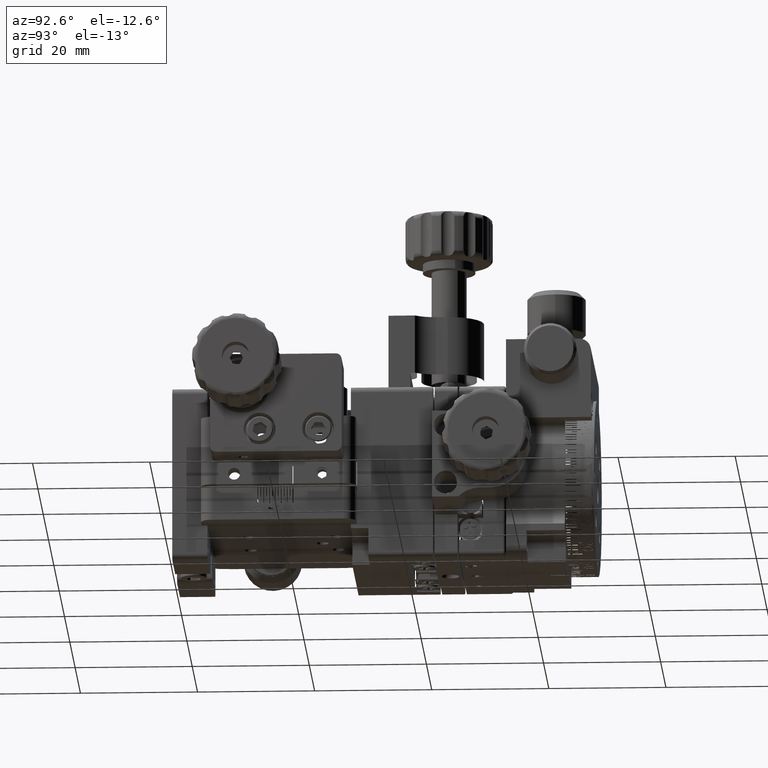
[diagram: clean part render]
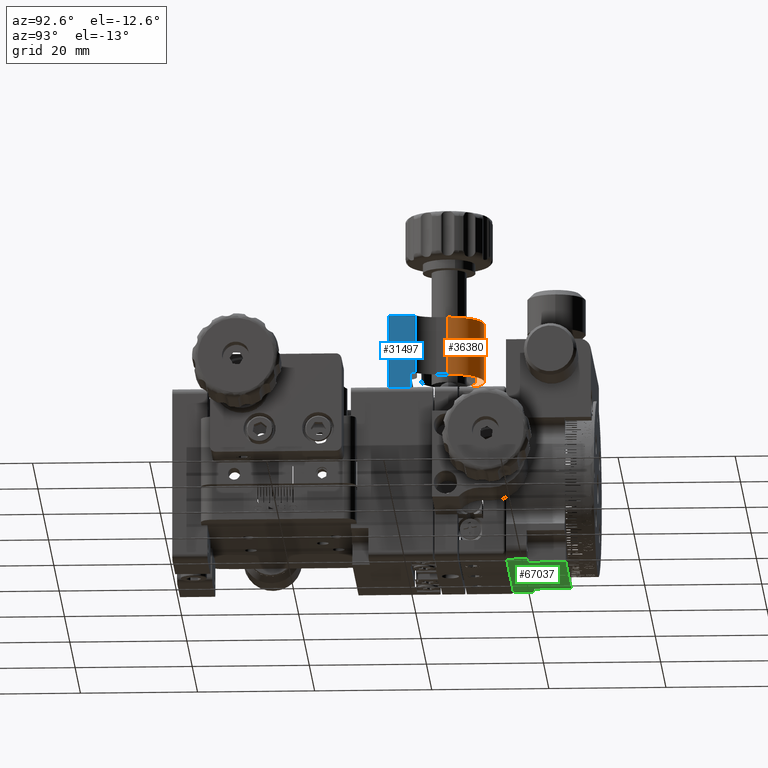
[diagram: same view with three faces highlighted in distinct colors, each labeled with its STEP entity id]
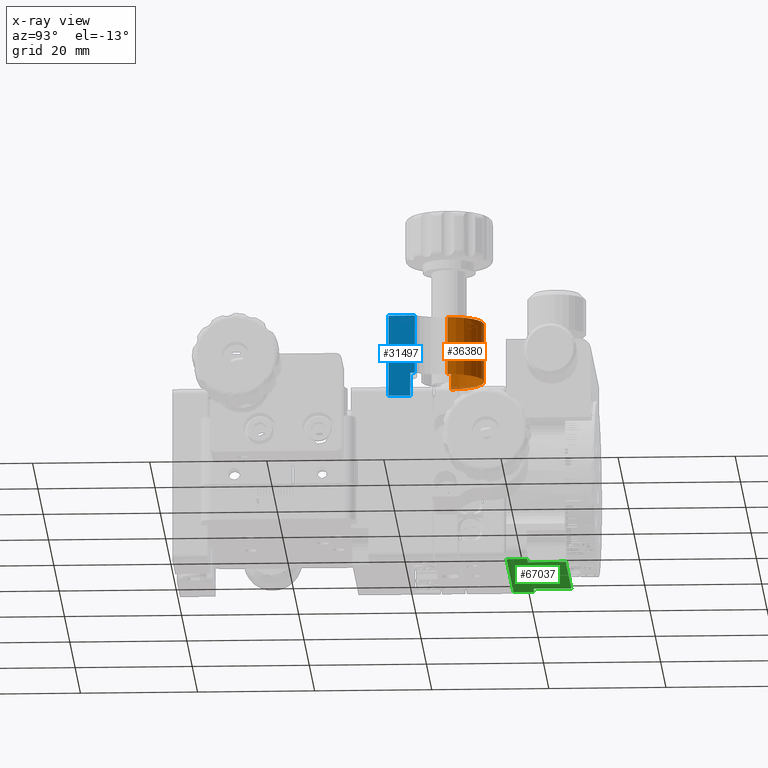
[diagram: x-ray of the same camera — body ghosted, the three highlighted faces saturated]
A machine part, auxiliary view with three faces highlighted in distinct colors.
The next image is the same camera in x-ray (body ghosted, the three faces saturated) — at least one of them is partly hidden behind the body in this view.
Their STEP definitions:

[orange] entity #36380 — the highlighted cylindrical surface (edge-blend (fillet) strip) has radius 6 mm, axis along (-0, 0, 1).
#992 = FACE_OUTER_BOUND ( 'NONE', #5180, .T. ) ;
#5035 = CIRCLE ( 'NONE', #50520, 5.999999999999997335 ) ;
#5180 = EDGE_LOOP ( 'NONE', ( #20484, #75654, #8219, #76421 ) ) ;
#6083 = CARTESIAN_POINT ( 'NONE',  ( 3.401153400965043960E-13, 46.60212255370681333, 18.99999999999999645 ) ) ;
#8219 = ORIENTED_EDGE ( 'NONE', *, *, #35968, .T. ) ;
#12453 = CARTESIAN_POINT ( 'NONE',  ( 6.000000000000334843, 46.60212255370681333, 28.99999999999999289 ) ) ;
#13202 = DIRECTION ( 'NONE',  ( -2.775557561562891967E-17, 1.387778780781445984E-17, 1.000000000000000000 ) ) ;
#16069 = VERTEX_POINT ( 'NONE', #20510 ) ;
#20484 = ORIENTED_EDGE ( 'NONE', *, *, #23173, .F. ) ;
#20510 = CARTESIAN_POINT ( 'NONE',  ( -5.999999999999659828, 46.60212255370681333, 28.99999999999999289 ) ) ;
#23173 = EDGE_CURVE ( 'NONE', #62959, #30113, #47520, .T. ) ;
#23882 = DIRECTION ( 'NONE',  ( 2.775557561562891967E-17, -1.387778780781445984E-17, -1.000000000000000000 ) ) ;
#26219 = CARTESIAN_POINT ( 'NONE',  ( 3.402263623989669117E-13, 46.60212255370681333, 14.99999999999999822 ) ) ;
#26871 = CARTESIAN_POINT ( 'NONE',  ( 6.000000000000337508, 46.60212255370681333, 18.99999999999999645 ) ) ;
#28410 = DIRECTION ( 'NONE',  ( -2.775557561562891967E-17, 1.387778780781445984E-17, 1.000000000000000000 ) ) ;
#30074 = VERTEX_POINT ( 'NONE', #73850 ) ;
#30113 = VERTEX_POINT ( 'NONE', #12453 ) ;
#31329 = DIRECTION ( 'NONE',  ( -2.775557561562891967E-17, 1.387778780781445984E-17, 1.000000000000000000 ) ) ;
#34928 = CARTESIAN_POINT ( 'NONE',  ( -5.999999999999659828, 46.60212255370681333, 14.99999999999999822 ) ) ;
#35968 = EDGE_CURVE ( 'NONE', #30074, #16069, #78396, .T. ) ;
#36380 = ADVANCED_FACE ( 'NONE', ( #992 ), #74201, .T. ) ;
#43115 = DIRECTION ( 'NONE',  ( 1.000000000000000000, 0.000000000000000000, 0.000000000000000000 ) ) ;
#44134 = DIRECTION ( 'NONE',  ( 1.000000000000000000, 0.000000000000000000, 0.000000000000000000 ) ) ;
#47520 = LINE ( 'NONE', #54430, #74382 ) ;
#50520 = AXIS2_PLACEMENT_3D ( 'NONE', #53976, #23882, #78766 ) ;
#53976 = CARTESIAN_POINT ( 'NONE',  ( 3.398377843403481069E-13, 46.60212255370681333, 28.99999999999999289 ) ) ;
#54430 = CARTESIAN_POINT ( 'NONE',  ( 6.000000000000334843, 46.60212255370681333, 14.99999999999999822 ) ) ;
#54529 = AXIS2_PLACEMENT_3D ( 'NONE', #6083, #31329, #43115 ) ;
#56724 = VECTOR ( 'NONE', #58905, 1000.000000000000000 ) ;
#58905 = DIRECTION ( 'NONE',  ( -2.775557561562891967E-17, 1.387778780781445984E-17, 1.000000000000000000 ) ) ;
#62959 = VERTEX_POINT ( 'NONE', #26871 ) ;
#73850 = CARTESIAN_POINT ( 'NONE',  ( -5.999999999999659828, 46.60212255370681333, 18.99999999999999645 ) ) ;
#74201 = CYLINDRICAL_SURFACE ( 'NONE', #80128, 5.999999999999997335 ) ;
#74382 = VECTOR ( 'NONE', #28410, 1000.000000000000000 ) ;
#75654 = ORIENTED_EDGE ( 'NONE', *, *, #80364, .T. ) ;
#76421 = ORIENTED_EDGE ( 'NONE', *, *, #79702, .T. ) ;
#77819 = CIRCLE ( 'NONE', #54529, 5.999999999999997335 ) ;
#78396 = LINE ( 'NONE', #34928, #56724 ) ;
#78766 = DIRECTION ( 'NONE',  ( -1.000000000000000000, 0.000000000000000000, 0.000000000000000000 ) ) ;
#79702 = EDGE_CURVE ( 'NONE', #16069, #30113, #5035, .T. ) ;
#80128 = AXIS2_PLACEMENT_3D ( 'NONE', #26219, #13202, #44134 ) ;
#80364 = EDGE_CURVE ( 'NONE', #62959, #30074, #77819, .T. ) ;

[blue] entity #31497 — the highlighted planar face has unit normal (-1, 0, -0).
#972 = VECTOR ( 'NONE', #50044, 1000.000000000000000 ) ;
#1420 = ORIENTED_EDGE ( 'NONE', *, *, #55312, .T. ) ;
#1759 = EDGE_LOOP ( 'NONE', ( #32911, #52591, #19569, #1420, #39691, #76845 ) ) ;
#6499 = EDGE_CURVE ( 'NONE', #15344, #36786, #78433, .T. ) ;
#8205 = DIRECTION ( 'NONE',  ( -1.274669351721256661E-16, -1.000000000000000000, 1.722399482391948625E-18 ) ) ;
#11348 = CARTESIAN_POINT ( 'NONE',  ( 7.500000000000329514, 36.60212255370680623, 28.99999999999999289 ) ) ;
#13298 = VECTOR ( 'NONE', #17449, 1000.000000000000000 ) ;
#13784 = CARTESIAN_POINT ( 'NONE',  ( 7.500000000000330402, 40.30212255370680197, 18.99999999999999645 ) ) ;
#15344 = VERTEX_POINT ( 'NONE', #27798 ) ;
#16549 = CARTESIAN_POINT ( 'NONE',  ( 7.500000000000329514, 36.60212255370680623, 14.99999999999999822 ) ) ;
#16670 = VERTEX_POINT ( 'NONE', #41942 ) ;
#17449 = DIRECTION ( 'NONE',  ( -1.274669351721256661E-16, -1.000000000000000000, 1.722399482391948625E-18 ) ) ;
#17528 = CARTESIAN_POINT ( 'NONE',  ( 7.500000000000329514, 36.60212255370680623, 28.99999999999999289 ) ) ;
#18085 = PLANE ( 'NONE',  #64141 ) ;
#18987 = VERTEX_POINT ( 'NONE', #16549 ) ;
#19569 = ORIENTED_EDGE ( 'NONE', *, *, #40008, .F. ) ;
#22793 = EDGE_CURVE ( 'NONE', #18987, #36786, #44906, .T. ) ;
#23786 = DIRECTION ( 'NONE',  ( -2.775557561562891967E-17, 1.387778780781445984E-17, 1.000000000000000000 ) ) ;
#25529 = CARTESIAN_POINT ( 'NONE',  ( 7.500000000000330402, 40.30212255370680197, 14.99999999999999822 ) ) ;
#27798 = CARTESIAN_POINT ( 'NONE',  ( 7.500000000000330402, 41.10212255370679912, 28.99999999999999289 ) ) ;
#31497 = ADVANCED_FACE ( 'NONE', ( #49407 ), #18085, .F. ) ;
#31879 = EDGE_CURVE ( 'NONE', #16670, #47454, #40572, .T. ) ;
#32911 = ORIENTED_EDGE ( 'NONE', *, *, #70391, .F. ) ;
#33262 = CARTESIAN_POINT ( 'NONE',  ( 7.500000000000330402, 41.10212255370679912, 14.99999999999999822 ) ) ;
#34854 = DIRECTION ( 'NONE',  ( -2.775557561562891967E-17, 1.387778780781445984E-17, 1.000000000000000000 ) ) ;
#36786 = VERTEX_POINT ( 'NONE', #17528 ) ;
#37959 = LINE ( 'NONE', #74925, #42159 ) ;
#38417 = CARTESIAN_POINT ( 'NONE',  ( 7.500000000000329514, 36.60212255370680623, 14.99999999999999822 ) ) ;
#39691 = ORIENTED_EDGE ( 'NONE', *, *, #6499, .T. ) ;
#40008 = EDGE_CURVE ( 'NONE', #65614, #16670, #67890, .T. ) ;
#40572 = LINE ( 'NONE', #59273, #74531 ) ;
#41942 = CARTESIAN_POINT ( 'NONE',  ( 7.500000000000330402, 40.30212255370680197, 18.99999999999999645 ) ) ;
#42159 = VECTOR ( 'NONE', #8205, 1000.000000000000000 ) ;
#44126 = DIRECTION ( 'NONE',  ( -2.775557561562891967E-17, 1.387778780781445984E-17, 1.000000000000000000 ) ) ;
#44906 = LINE ( 'NONE', #38417, #75647 ) ;
#47454 = VERTEX_POINT ( 'NONE', #25529 ) ;
#49407 = FACE_OUTER_BOUND ( 'NONE', #1759, .T. ) ;
#50044 = DIRECTION ( 'NONE',  ( -1.274669351721256661E-16, -1.000000000000000000, 1.722399482391948817E-18 ) ) ;
#52591 = ORIENTED_EDGE ( 'NONE', *, *, #31879, .F. ) ;
#54396 = DIRECTION ( 'NONE',  ( 2.775557561562891967E-17, -1.387778780781445984E-17, -1.000000000000000000 ) ) ;
#55312 = EDGE_CURVE ( 'NONE', #65614, #15344, #65708, .T. ) ;
#59273 = CARTESIAN_POINT ( 'NONE',  ( 7.500000000000330402, 40.30212255370680197, 18.99999999999999645 ) ) ;
#64141 = AXIS2_PLACEMENT_3D ( 'NONE', #79882, #73358, #23786 ) ;
#65614 = VERTEX_POINT ( 'NONE', #80053 ) ;
#65708 = LINE ( 'NONE', #33262, #65839 ) ;
#65839 = VECTOR ( 'NONE', #34854, 1000.000000000000000 ) ;
#67890 = LINE ( 'NONE', #13784, #972 ) ;
#70391 = EDGE_CURVE ( 'NONE', #47454, #18987, #37959, .T. ) ;
#73358 = DIRECTION ( 'NONE',  ( -1.000000000000000000, 1.353084311261909534E-16, -2.775557561562891967E-17 ) ) ;
#74531 = VECTOR ( 'NONE', #54396, 1000.000000000000000 ) ;
#74925 = CARTESIAN_POINT ( 'NONE',  ( 7.500000000000329514, 36.60212255370680623, 14.99999999999999822 ) ) ;
#75647 = VECTOR ( 'NONE', #44126, 1000.000000000000000 ) ;
#76845 = ORIENTED_EDGE ( 'NONE', *, *, #22793, .F. ) ;
#78433 = LINE ( 'NONE', #11348, #13298 ) ;
#79882 = CARTESIAN_POINT ( 'NONE',  ( 7.500000000000329514, 36.60212255370680623, 14.99999999999999822 ) ) ;
#80053 = CARTESIAN_POINT ( 'NONE',  ( 7.500000000000330402, 41.10212255370679912, 18.99999999999999645 ) ) ;

[green] entity #67037 — the highlighted planar face has unit normal (0, 0, 1).
#3501 = CARTESIAN_POINT ( 'NONE',  ( 0.05000000000023995667, 71.50212255370689718, -14.99999999999993960 ) ) ;
#5153 = VERTEX_POINT ( 'NONE', #8002 ) ;
#6366 = LINE ( 'NONE', #37307, #63487 ) ;
#8002 = CARTESIAN_POINT ( 'NONE',  ( 10.45000000000028884, 67.00212255370689718, -14.99999999999993960 ) ) ;
#8471 = EDGE_CURVE ( 'NONE', #70542, #77566, #53566, .T. ) ;
#8858 = CARTESIAN_POINT ( 'NONE',  ( 13.00000000000028244, 57.00212255370689718, -14.99999999999993960 ) ) ;
#9888 = EDGE_CURVE ( 'NONE', #69330, #56220, #45015, .T. ) ;
#11155 = FACE_OUTER_BOUND ( 'NONE', #56760, .T. ) ;
#12324 = CARTESIAN_POINT ( 'NONE',  ( -12.99999999999971401, 57.00212255370689718, -14.99999999999993960 ) ) ;
#12386 = VERTEX_POINT ( 'NONE', #79390 ) ;
#13368 = ORIENTED_EDGE ( 'NONE', *, *, #79800, .F. ) ;
#13519 = CARTESIAN_POINT ( 'NONE',  ( 0.05000000000023908930, 64.00212255370689718, -14.99999999999993960 ) ) ;
#13979 = DIRECTION ( 'NONE',  ( -1.000000000000000000, 0.000000000000000000, 0.000000000000000000 ) ) ;
#14344 = ORIENTED_EDGE ( 'NONE', *, *, #8471, .T. ) ;
#14548 = DIRECTION ( 'NONE',  ( -0.000000000000000000, 1.000000000000000000, -0.000000000000000000 ) ) ;
#15102 = CARTESIAN_POINT ( 'NONE',  ( -10.44999999999971330, 60.50212255370689718, -14.99999999999993960 ) ) ;
#16633 = ORIENTED_EDGE ( 'NONE', *, *, #77356, .F. ) ;
#17282 = VERTEX_POINT ( 'NONE', #78313 ) ;
#17367 = VERTEX_POINT ( 'NONE', #13519 ) ;
#17888 = DIRECTION ( 'NONE',  ( -1.445602896647339163E-16, 1.000000000000000000, 5.047295537021763909E-31 ) ) ;
#18186 = ORIENTED_EDGE ( 'NONE', *, *, #68115, .F. ) ;
#18253 = DIRECTION ( 'NONE',  ( -1.000000000000000000, -0.000000000000000000, -0.000000000000000000 ) ) ;
#19270 = VECTOR ( 'NONE', #45070, 1000.000000000000000 ) ;
#23611 = EDGE_CURVE ( 'NONE', #25577, #36618, #61756, .T. ) ;
#23996 = LINE ( 'NONE', #80097, #52932 ) ;
#24837 = DIRECTION ( 'NONE',  ( -1.000000000000000000, 0.000000000000000000, 0.000000000000000000 ) ) ;
#25577 = VERTEX_POINT ( 'NONE', #8858 ) ;
#25645 = CARTESIAN_POINT ( 'NONE',  ( -14.99999999999971578, 67.00212255370689718, -14.99999999999993960 ) ) ;
#25957 = CARTESIAN_POINT ( 'NONE',  ( -14.99999999999971578, 57.00212255370689718, -14.99999999999993960 ) ) ;
#26786 = CARTESIAN_POINT ( 'NONE',  ( -10.44999999999971330, 67.00212255370689718, -14.99999999999993960 ) ) ;
#27888 = DIRECTION ( 'NONE',  ( -1.000000000000000000, 0.000000000000000000, 3.491481338843133355E-15 ) ) ;
#28156 = VERTEX_POINT ( 'NONE', #40629 ) ;
#29282 = VECTOR ( 'NONE', #24837, 1000.000000000000000 ) ;
#31222 = LINE ( 'NONE', #50700, #34771 ) ;
#32010 = DIRECTION ( 'NONE',  ( 0.000000000000000000, -1.000000000000000000, 0.000000000000000000 ) ) ;
#34062 = LINE ( 'NONE', #3501, #55157 ) ;
#34771 = VECTOR ( 'NONE', #32010, 1000.000000000000000 ) ;
#36618 = VERTEX_POINT ( 'NONE', #12324 ) ;
#36998 = CARTESIAN_POINT ( 'NONE',  ( 13.00000000000028244, 60.50212255370689718, -14.99999999999993960 ) ) ;
#37307 = CARTESIAN_POINT ( 'NONE',  ( -15.71961257211166085, 60.50212255370689718, -14.99999999999993960 ) ) ;
#37914 = DIRECTION ( 'NONE',  ( -0.000000000000000000, 1.000000000000000000, -0.000000000000000000 ) ) ;
#38243 = LINE ( 'NONE', #25645, #29282 ) ;
#38825 = EDGE_CURVE ( 'NONE', #36618, #12386, #50122, .T. ) ;
#40446 = DIRECTION ( 'NONE',  ( 1.000000000000000000, 0.000000000000000000, -0.000000000000000000 ) ) ;
#40629 = CARTESIAN_POINT ( 'NONE',  ( 0.05000000000023995667, 67.00212255370689718, -14.99999999999993960 ) ) ;
#43685 = ORIENTED_EDGE ( 'NONE', *, *, #68371, .F. ) ;
#44969 = DIRECTION ( 'NONE',  ( -1.000000000000000000, 0.000000000000000000, 0.000000000000000000 ) ) ;
#45015 = LINE ( 'NONE', #51529, #63090 ) ;
#45070 = DIRECTION ( 'NONE',  ( -0.000000000000000000, 1.000000000000000000, -0.000000000000000000 ) ) ;
#45300 = CARTESIAN_POINT ( 'NONE',  ( -14.99999999999971578, 67.00212255370689718, -14.99999999999993960 ) ) ;
#46642 = DIRECTION ( 'NONE',  ( -0.000000000000000000, 1.000000000000000000, 0.000000000000000000 ) ) ;
#50122 = LINE ( 'NONE', #74883, #50298 ) ;
#50298 = VECTOR ( 'NONE', #37914, 1000.000000000000000 ) ;
#50405 = LINE ( 'NONE', #50786, #19270 ) ;
#50700 = CARTESIAN_POINT ( 'NONE',  ( 13.00000000000028244, 71.50212255370689718, -14.99999999999993960 ) ) ;
#50786 = CARTESIAN_POINT ( 'NONE',  ( 10.45000000000028884, 53.53998806346898220, -14.99999999999993960 ) ) ;
#50934 = AXIS2_PLACEMENT_3D ( 'NONE', #59143, #66841, #40446 ) ;
#51506 = VECTOR ( 'NONE', #14548, 1000.000000000000000 ) ;
#51529 = CARTESIAN_POINT ( 'NONE',  ( 15.71961257211223639, 60.50212255370689718, -14.99999999999993960 ) ) ;
#52932 = VECTOR ( 'NONE', #17888, 1000.000000000000000 ) ;
#53566 = LINE ( 'NONE', #70235, #51506 ) ;
#54082 = ORIENTED_EDGE ( 'NONE', *, *, #57229, .F. ) ;
#54304 = ORIENTED_EDGE ( 'NONE', *, *, #73824, .F. ) ;
#55157 = VECTOR ( 'NONE', #46642, 1000.000000000000000 ) ;
#56220 = VERTEX_POINT ( 'NONE', #36998 ) ;
#56760 = EDGE_LOOP ( 'NONE', ( #43685, #16633, #18186, #67156, #54304, #54082, #76565, #57186, #59671, #62308, #13368, #14344 ) ) ;
#57186 = ORIENTED_EDGE ( 'NONE', *, *, #77752, .T. ) ;
#57229 = EDGE_CURVE ( 'NONE', #69330, #5153, #50405, .T. ) ;
#57526 = CARTESIAN_POINT ( 'NONE',  ( -0.04999999999976030562, 64.00212255370689718, -14.99999999999993960 ) ) ;
#59143 = CARTESIAN_POINT ( 'NONE',  ( -14.99999999999971578, 71.50212255370689718, -14.99999999999993960 ) ) ;
#59548 = PLANE ( 'NONE',  #50934 ) ;
#59671 = ORIENTED_EDGE ( 'NONE', *, *, #23611, .T. ) ;
#61407 = VECTOR ( 'NONE', #18253, 1000.000000000000000 ) ;
#61756 = LINE ( 'NONE', #25957, #61407 ) ;
#62308 = ORIENTED_EDGE ( 'NONE', *, *, #38825, .T. ) ;
#62748 = VECTOR ( 'NONE', #27888, 1000.000000000000000 ) ;
#62792 = LINE ( 'NONE', #45300, #73124 ) ;
#63090 = VECTOR ( 'NONE', #75893, 1000.000000000000000 ) ;
#63487 = VECTOR ( 'NONE', #44969, 1000.000000000000000 ) ;
#66841 = DIRECTION ( 'NONE',  ( 0.000000000000000000, 0.000000000000000000, 1.000000000000000000 ) ) ;
#67037 = ADVANCED_FACE ( 'NONE', ( #11155 ), #59548, .F. ) ;
#67156 = ORIENTED_EDGE ( 'NONE', *, *, #73528, .T. ) ;
#68115 = EDGE_CURVE ( 'NONE', #17367, #74614, #78277, .T. ) ;
#68371 = EDGE_CURVE ( 'NONE', #17282, #77566, #62792, .T. ) ;
#69330 = VERTEX_POINT ( 'NONE', #69679 ) ;
#69679 = CARTESIAN_POINT ( 'NONE',  ( 10.45000000000028884, 60.50212255370689718, -14.99999999999993960 ) ) ;
#70235 = CARTESIAN_POINT ( 'NONE',  ( -10.44999999999971330, 53.53998806346898220, -14.99999999999993960 ) ) ;
#70542 = VERTEX_POINT ( 'NONE', #15102 ) ;
#71350 = CARTESIAN_POINT ( 'NONE',  ( 0.05000000000023908930, 64.00212255370689718, -14.99999999999993960 ) ) ;
#73124 = VECTOR ( 'NONE', #13979, 1000.000000000000000 ) ;
#73528 = EDGE_CURVE ( 'NONE', #17367, #28156, #34062, .T. ) ;
#73824 = EDGE_CURVE ( 'NONE', #5153, #28156, #38243, .T. ) ;
#74614 = VERTEX_POINT ( 'NONE', #57526 ) ;
#74883 = CARTESIAN_POINT ( 'NONE',  ( -12.99999999999971401, 71.50212255370689718, -14.99999999999993960 ) ) ;
#75893 = DIRECTION ( 'NONE',  ( 1.000000000000000000, 0.000000000000000000, -0.000000000000000000 ) ) ;
#76565 = ORIENTED_EDGE ( 'NONE', *, *, #9888, .T. ) ;
#77356 = EDGE_CURVE ( 'NONE', #74614, #17282, #23996, .T. ) ;
#77566 = VERTEX_POINT ( 'NONE', #26786 ) ;
#77752 = EDGE_CURVE ( 'NONE', #56220, #25577, #31222, .T. ) ;
#78277 = LINE ( 'NONE', #71350, #62748 ) ;
#78313 = CARTESIAN_POINT ( 'NONE',  ( -0.04999999999976073584, 67.00212255370689718, -14.99999999999993960 ) ) ;
#79390 = CARTESIAN_POINT ( 'NONE',  ( -12.99999999999971401, 60.50212255370689718, -14.99999999999993960 ) ) ;
#79800 = EDGE_CURVE ( 'NONE', #70542, #12386, #6366, .T. ) ;
#80097 = CARTESIAN_POINT ( 'NONE',  ( -0.04999999999976030562, 64.00212255370689718, -14.99999999999993960 ) ) ;